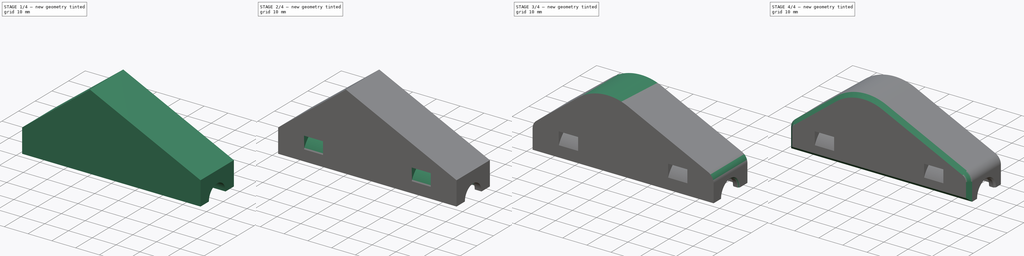
[diagram: build sequence overview — one tinted view per stage of 4, left to right]
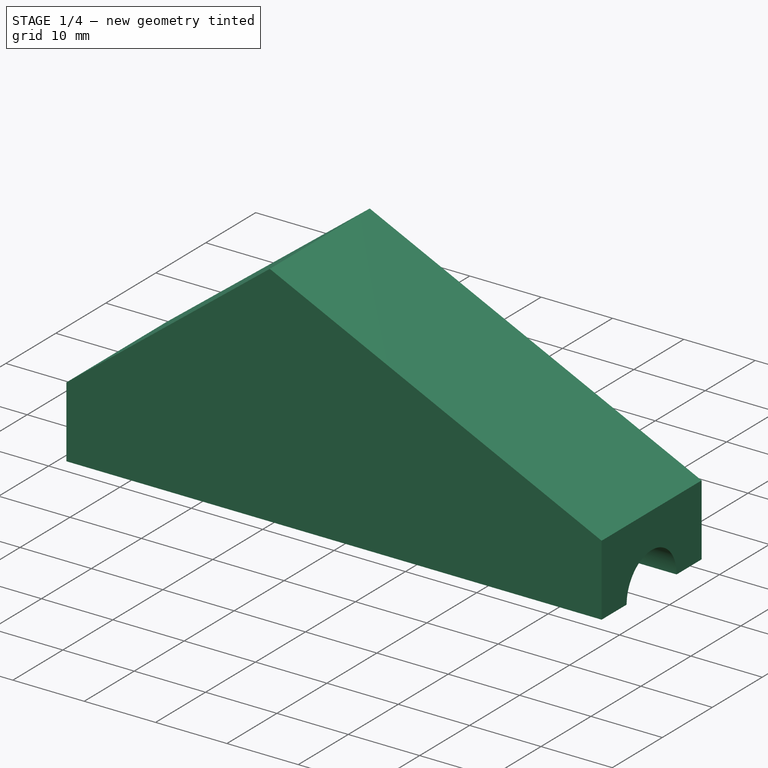
[diagram: stage 1 of 4 — iso view after this stage's code; geometry added in this stage tinted green]
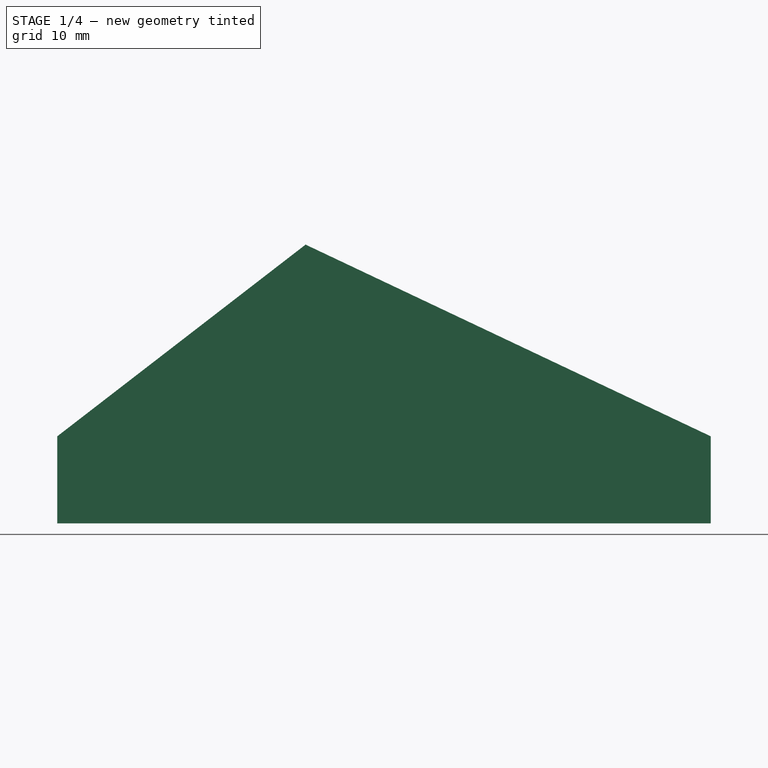
[diagram: stage 1 of 4 — front view after this stage's code; geometry added in this stage tinted green]
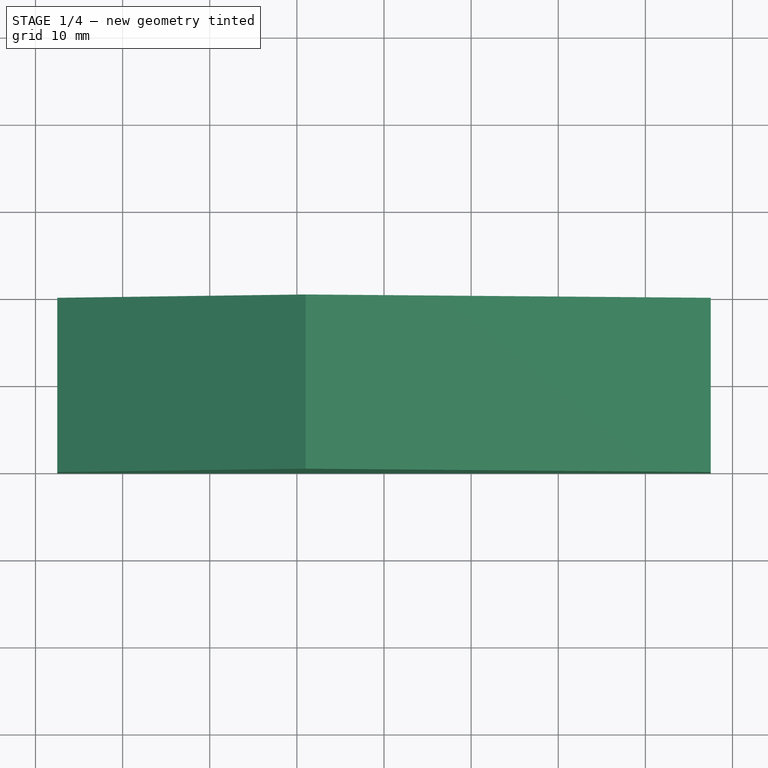
[diagram: stage 1 of 4 — top view after this stage's code; geometry added in this stage tinted green]
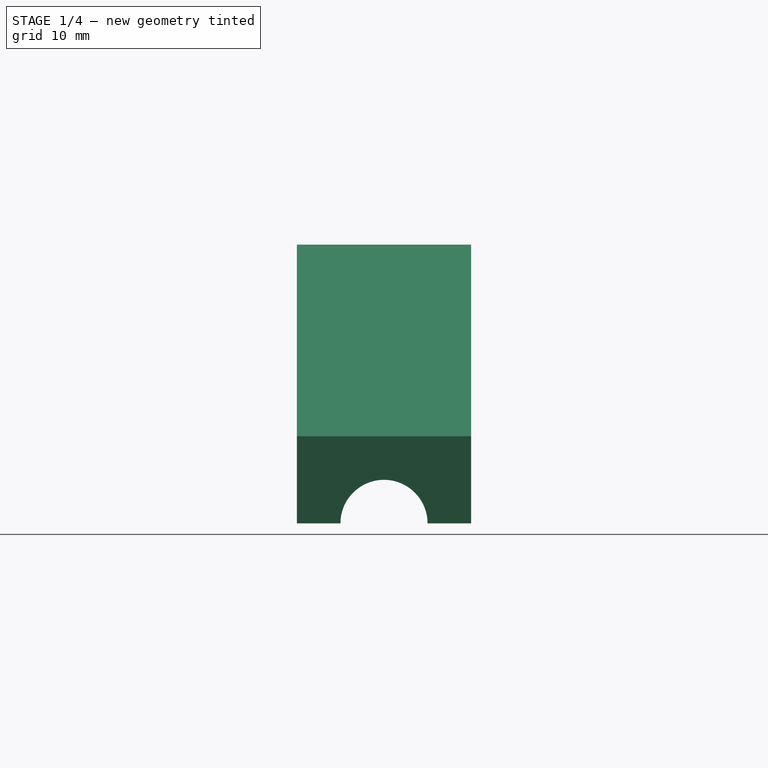
[diagram: stage 1 of 4 — right view after this stage's code; geometry added in this stage tinted green]
FCSTD DOCUMENT  (FreeCAD 0.18.4R)
Label: bearingmount
License: All rights reserved
LicenseURL: http://en.wikipedia.org/wiki/All_rights_reserved
objects: Sketcher::SketchObject×4, PartDesign::Chamfer×3, PartDesign::Pocket×2, PartDesign::Fillet×2, PartDesign::Pad×1, PartDesign::Groove×1, PartDesign::Body×1
note: 18 computed .brp shape members not serialized (recipe doc carries the construction recipe); baked Part::Feature solids carry a one-line shape summary decoded from their .brp

FEATURE [Sketcher::SketchObject] Sketch
  MapMode = 5
  Placement = pos=(0,0,0) rot=(1,0,0;1.5708rad)
  Support = -> [XZ_Plane]
  sketch-geometry (5):
    g0: LineSegment StartX=-37.5 StartY=0 StartZ=0 EndX=37.5 EndY=-1e-16 EndZ=0
    g1: LineSegment StartX=37.5 StartY=-1e-16 StartZ=0 EndX=37.5 EndY=10 EndZ=0
    g2: LineSegment StartX=37.5 StartY=10 StartZ=0 EndX=-9 EndY=32 EndZ=0
    g3: LineSegment StartX=-9 StartY=32 StartZ=0 EndX=-37.5 EndY=10 EndZ=0
    g4: LineSegment StartX=-37.5 StartY=10 StartZ=0 EndX=-37.5 EndY=0 EndZ=0
  constraints (14):
    c: Coincident(g0,g1)
    c: Vertical(g1)
    c: Coincident(g1,g2)
    c: Coincident(g2,g3)
    c: Coincident(g3,g4)
    c: Vertical(g4)
    c: Coincident(g4,g0)
    c: DistanceY(g4,g4) = 10
    c: DistanceY(g1,g1) = 10
    c: DistanceX(g0,g0) = 75
    c: DistanceX(g2,g-1) = 9
    c: Symmetric(g0,g0,g-2)
    c: DistanceY(g3,g2) = 22
    c: PointOnObject(g0,g-1)
FEATURE [PartDesign::Pad] Pad
  Length = 20
  Length2 = 100
  Midplane = true
  Placement = pos=(0,0,0) rot=(1,0,0;1.5708rad)
  Profile = -> Sketch
  Refine = true
  Type = 0
FEATURE [Sketcher::SketchObject] Sketch001
  MapMode = 5
  Placement = pos=(37.5,0,0) rot=(0.707107,0,0.707107;3.14159rad)
  Support = -> [Pad]
  sketch-geometry (1):
    g0: Circle CenterX=0 CenterY=0 CenterZ=0 NormalX=0 NormalY=0 NormalZ=1 AngleXU=0 Radius=5
  constraints (2):
    c: Coincident(g0,g-1)
    c: Radius(g0) = 5
FEATURE [PartDesign::Pocket] Pocket
  BaseFeature = -> Pad
  Length = 5
  Length2 = 100
  Placement = pos=(0,0,0) rot=(1,0,0;1.5708rad)
  Profile = -> Sketch001
  Refine = true
  Type = 1
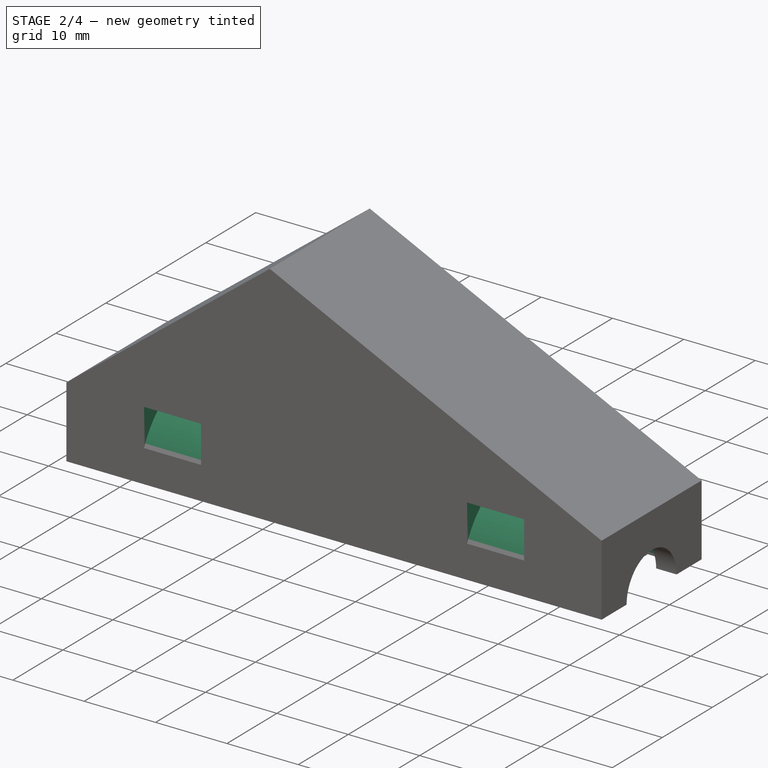
[diagram: stage 2 of 4 — iso view after this stage's code; geometry added in this stage tinted green]
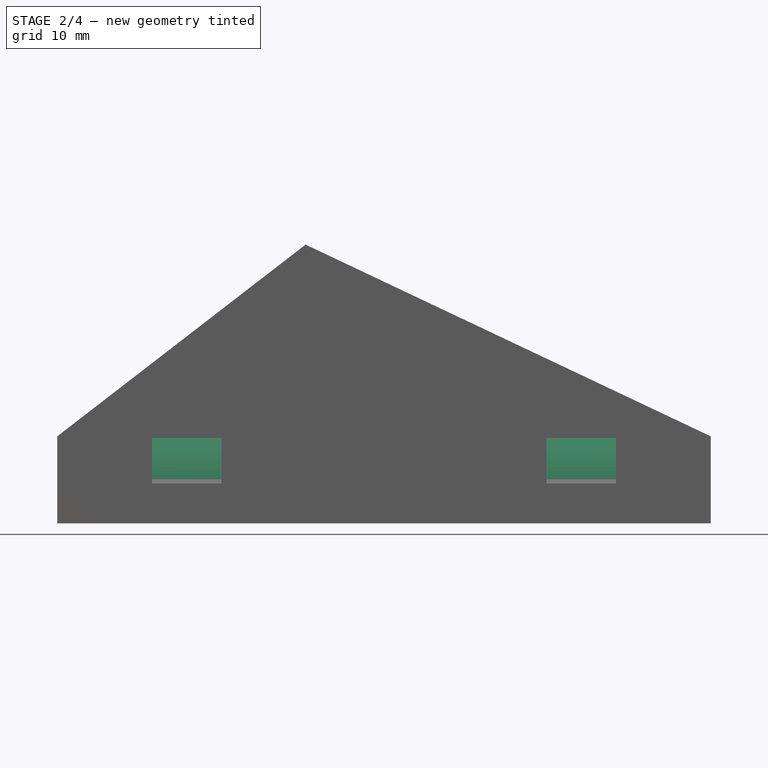
[diagram: stage 2 of 4 — front view after this stage's code; geometry added in this stage tinted green]
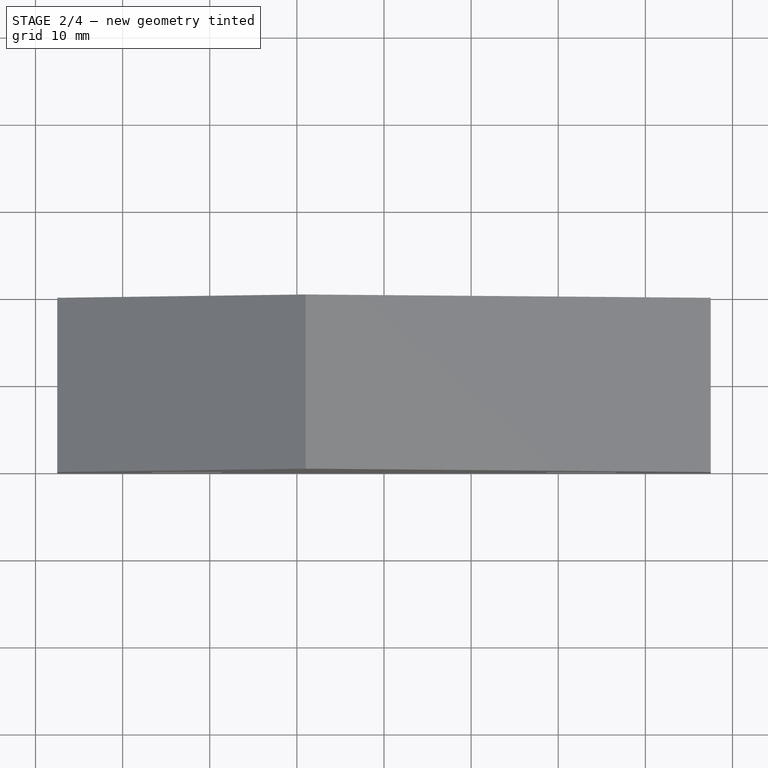
[diagram: stage 2 of 4 — top view after this stage's code; geometry added in this stage tinted green]
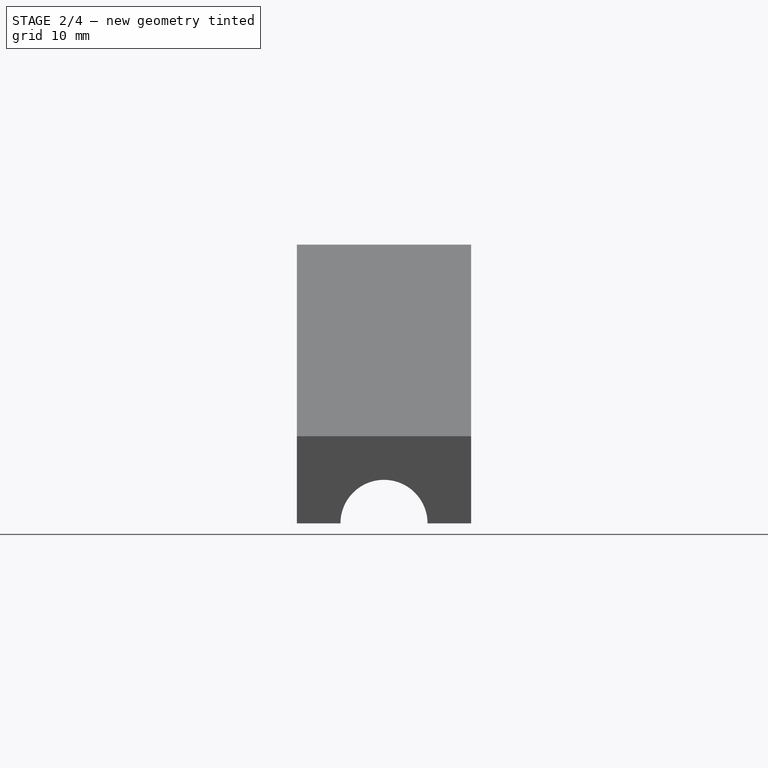
[diagram: stage 2 of 4 — right view after this stage's code; geometry added in this stage tinted green]
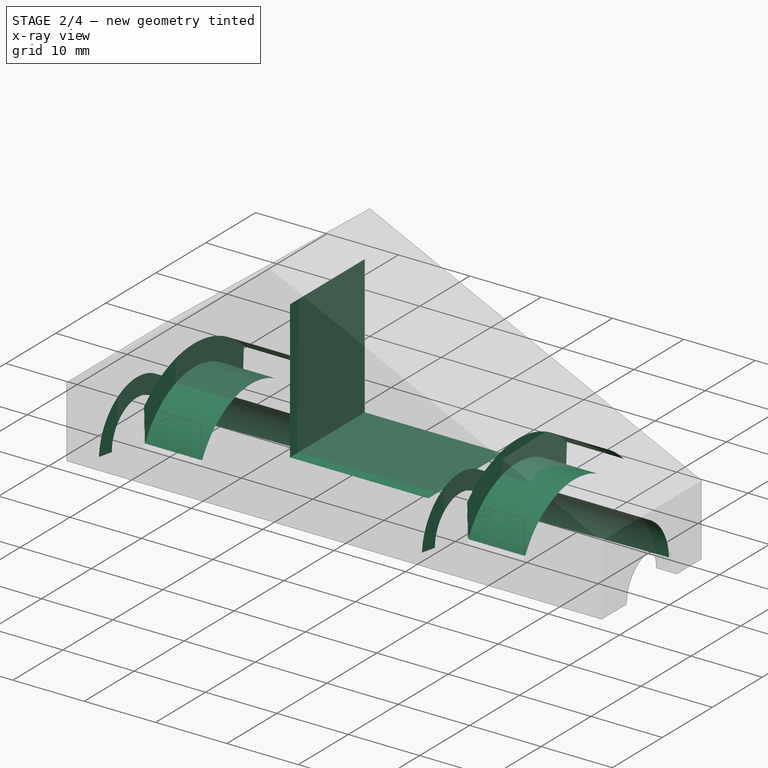
[diagram: stage 2 of 4 — x-ray composite at the iso view; earlier geometry ghosted, this stage's added geometry solid]
FEATURE [Sketcher::SketchObject] Sketch002
  MapMode = 5
  Placement = pos=(0,10,-1.11e-14) rot=(-1,0,0;1.5708rad)
  Support = -> [Pocket]
  sketch-geometry (6):
    g0: LineSegment StartX=-9.7 StartY=-25.4 StartZ=0 EndX=-9.7 EndY=-6 EndZ=0
    g1: LineSegment StartX=-9.7 StartY=-6 StartZ=0 EndX=9.7 EndY=-6 EndZ=0
    g2: LineSegment StartX=9.7 StartY=-6 StartZ=0 EndX=9.7 EndY=-7.8 EndZ=0
    g3: LineSegment StartX=9.7 StartY=-7.8 StartZ=0 EndX=-7.9 EndY=-7.8 EndZ=0
    g4: LineSegment StartX=-7.9 StartY=-7.8 StartZ=0 EndX=-7.9 EndY=-25.4 EndZ=0
    g5: LineSegment StartX=-7.9 StartY=-25.4 StartZ=0 EndX=-9.7 EndY=-25.4 EndZ=0
  constraints (17):
    c: Vertical(g0)
    c: Coincident(g0,g1)
    c: Coincident(g1,g2)
    c: Coincident(g2,g3)
    c: Horizontal(g3)
    c: Coincident(g3,g4)
    c: Vertical(g4)
    c: Coincident(g4,g5)
    c: Coincident(g5,g0)
    c: Vertical(g2)
    c: Horizontal(g5)
    c: DistanceY(g0,g0) = 19.4
    c: Equal(g0,g1)
    c: Equal(g5,g2)
    c: DistanceY(g2,g2) = 1.8
    c: Symmetric(g0,g1,g-2)
    c: DistanceY(g1,g-1) = 6
FEATURE [PartDesign::Pocket] Pocket001
  BaseFeature = -> Pocket
  Length = 15
  Length2 = 100
  Placement = pos=(0,0,0) rot=(1,0,0;1.5708rad)
  Profile = -> Sketch002
  Refine = true
  Type = 0
FEATURE [Sketcher::SketchObject] Sketch003
  MapMode = 5
  Placement = pos=(0,0,0) rot=(1,0,0;1.5708rad)
  Support = -> [XZ_Plane]
  sketch-geometry (17):
    g0: LineSegment StartX=-34.6369 StartY=0 StartZ=0 EndX=-10.6369 EndY=0 EndZ=0
    g1: LineSegment StartX=-10.6369 StartY=0 StartZ=0 EndX=-10.6369 EndY=7.6 EndZ=0
    g2: LineSegment StartX=-10.6369 StartY=7.6 StartZ=0 EndX=-34.6369 EndY=7.6 EndZ=0
    g3: LineSegment StartX=-34.6369 StartY=7.6 StartZ=0 EndX=-34.6369 EndY=0 EndZ=0
    g4: LineSegment StartX=10.6369 StartY=0 StartZ=0 EndX=34.6369 EndY=0 EndZ=0
    g5: LineSegment StartX=34.6369 StartY=0 StartZ=0 EndX=34.6369 EndY=7.6 EndZ=0
    g6: LineSegment StartX=34.6369 StartY=7.6 StartZ=0 EndX=10.6369 EndY=7.6 EndZ=0
    g7: LineSegment StartX=10.6369 StartY=7.6 StartZ=0 EndX=10.6369 EndY=0 EndZ=0
    g8: LineSegment StartX=-26.6369 StartY=14 StartZ=0 EndX=-18.6369 EndY=14 EndZ=0
    g9: LineSegment StartX=-18.6369 StartY=14 StartZ=0 EndX=-18.6369 EndY=11 EndZ=0
    g10: LineSegment StartX=-18.6369 StartY=11 StartZ=0 EndX=-26.6369 EndY=11 EndZ=0
    g11: LineSegment StartX=-26.6369 StartY=11 StartZ=0 EndX=-26.6369 EndY=14 EndZ=0
    g12: LineSegment StartX=18.6369 StartY=14 StartZ=0 EndX=26.6369 EndY=14 EndZ=0
    g13: LineSegment StartX=26.6369 StartY=14 StartZ=0 EndX=26.6369 EndY=11 EndZ=0
    g14: LineSegment StartX=26.6369 StartY=11 StartZ=0 EndX=18.6369 EndY=11 EndZ=0
    g15: LineSegment StartX=18.6369 StartY=11 StartZ=0 EndX=18.6369 EndY=14 EndZ=0
    g16: LineSegment [constr] StartX=-22.6369 StartY=0 StartZ=0 EndX=-22.6369 EndY=14 EndZ=0
  constraints (47):
    c: Coincident(g0,g1)
    c: Coincident(g1,g2)
    c: Coincident(g2,g3)
    c: Coincident(g3,g0)
    c: Horizontal(g0)
    c: Horizontal(g2)
    c: Vertical(g1)
    c: Vertical(g3)
    c: PointOnObject(g0,g-1)
    c: Coincident(g4,g5)
    c: Coincident(g5,g6)
    c: Coincident(g6,g7)
    c: Coincident(g7,g4)
    c: Horizontal(g4)
    c: Horizontal(g6)
    c: Vertical(g5)
    c: Vertical(g7)
    c: Coincident(g8,g9)
    c: Coincident(g9,g10)
    c: Coincident(g10,g11)
    c: Coincident(g11,g8)
    c: Horizontal(g8)
    c: Vertical(g9)
    c: Vertical(g11)
    c: Coincident(g12,g13)
    c: Coincident(g13,g14)
    c: Coincident(g14,g15)
    c: Coincident(g15,g12)
    c: Horizontal(g12)
    c: Horizontal(g14)
    c: Vertical(g13)
    c: Vertical(g15)
    c: DistanceY(g3,g3) = 7.6
    c: Equal(g7,g1)
    c: Equal(g2,g6)
    c: DistanceX(g2,g2) = 24
    c: Symmetric(g1,g6,g-2)
    c: DistanceY(g-1,g9) = 11
    c: Equal(g9,g15)
    c: Equal(g12,g8)
    c: Symmetric(g14,g9,g-2)
    c: PointOnObject(g16,g8)
    c: PointOnObject(g16,g0)
    c: Symmetric(g2,g1,g16)
    c: Symmetric(g10,g9,g16)
    c: DistanceY(g9,g9) = 3
    c: DistanceX(g8,g8) = 8
FEATURE [PartDesign::Groove] Groove
  Angle = 360
  Axis = (1,0,0)
  Base = (0,0,0)
  BaseFeature = -> Pocket001
  Placement = pos=(0,0,0) rot=(1,0,0;1.5708rad)
  Profile = -> Sketch003
  ReferenceAxis = -> Sketch003 [H_Axis]
  Refine = true
  Reversed = true
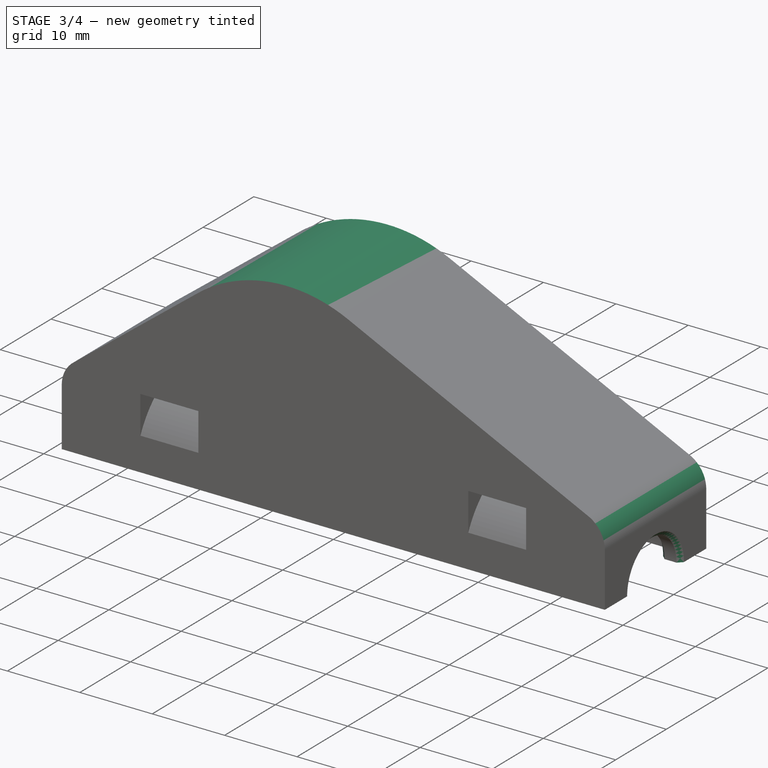
[diagram: stage 3 of 4 — iso view after this stage's code; geometry added in this stage tinted green]
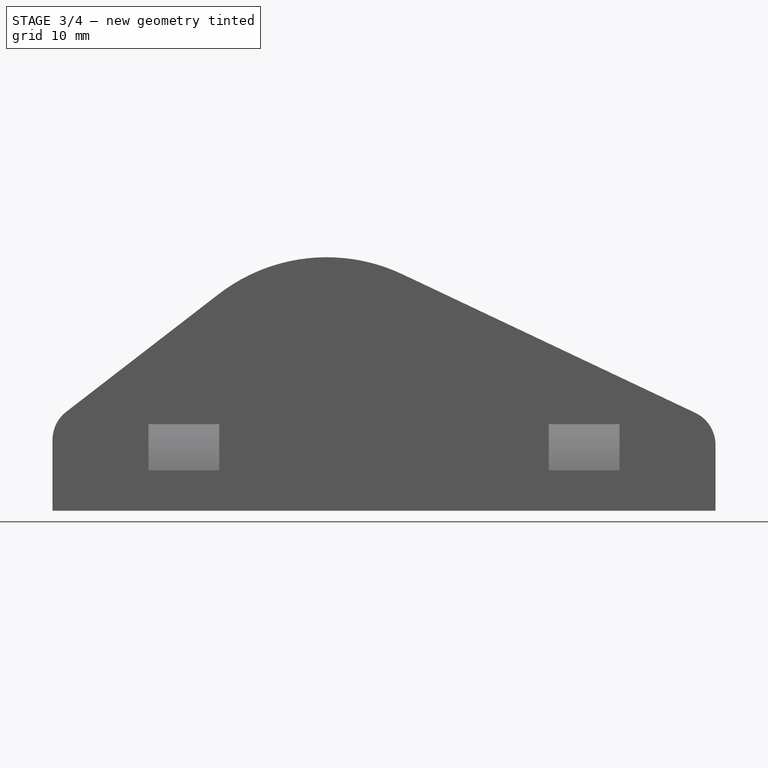
[diagram: stage 3 of 4 — front view after this stage's code; geometry added in this stage tinted green]
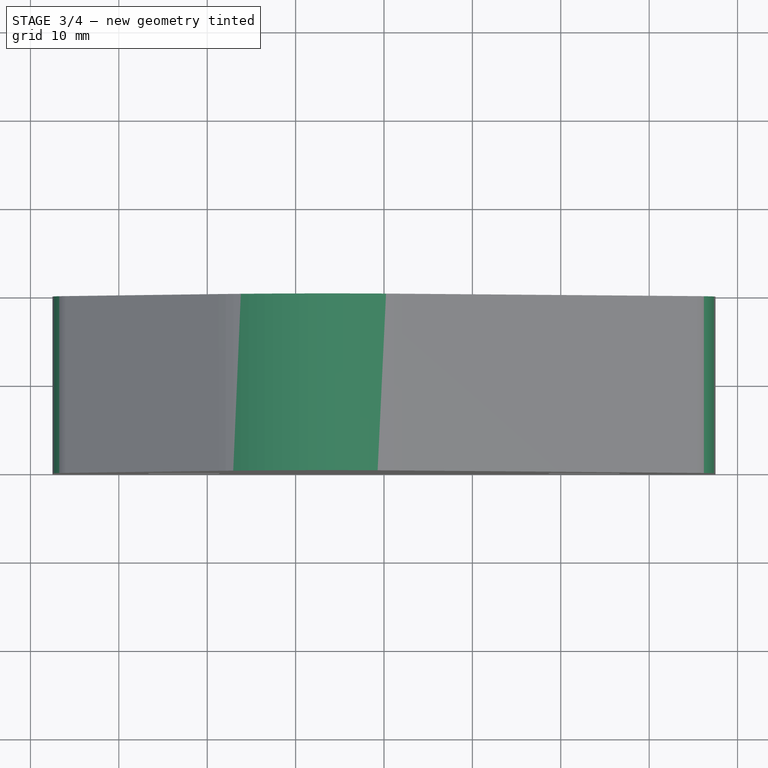
[diagram: stage 3 of 4 — top view after this stage's code; geometry added in this stage tinted green]
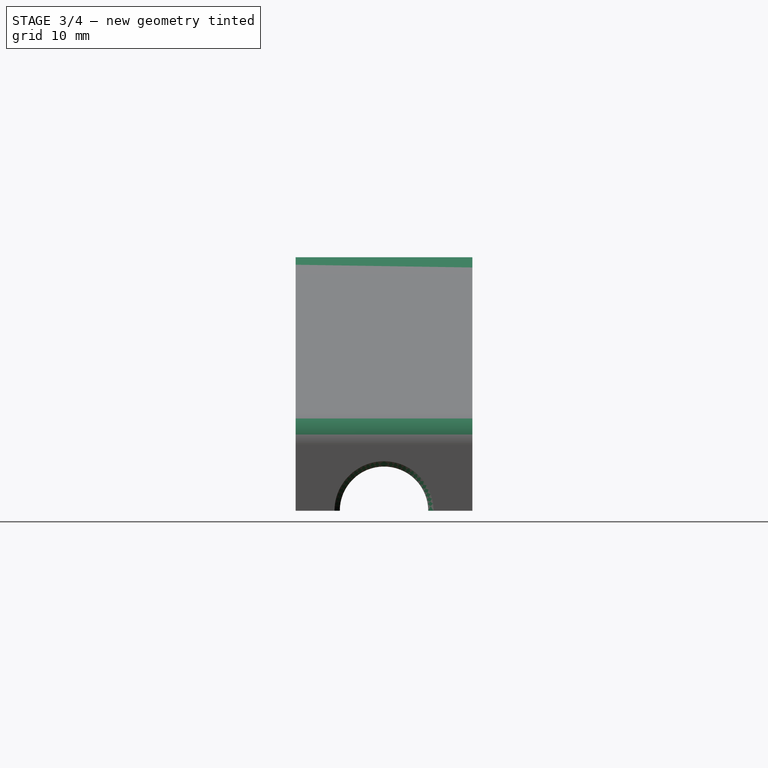
[diagram: stage 3 of 4 — right view after this stage's code; geometry added in this stage tinted green]
FEATURE [PartDesign::Chamfer] Chamfer
  Base = -> Groove [Edge35,Edge36,Edge43,Edge45,Edge52,Edge55]
  BaseFeature = -> Groove
  Placement = pos=(0,0,0) rot=(1,0,0;1.5708rad)
  Size = 0.6
FEATURE [PartDesign::Fillet] Fillet
  Base = -> Chamfer [Edge95]
  BaseFeature = -> Chamfer
  Placement = pos=(0,0,0) rot=(1,0,0;1.5708rad)
  Radius = 20
FEATURE [PartDesign::Fillet] Fillet001
  Base = -> Fillet [Edge31,Edge22]
  BaseFeature = -> Fillet
  Placement = pos=(0,0,0) rot=(1,0,0;1.5708rad)
  Radius = 4
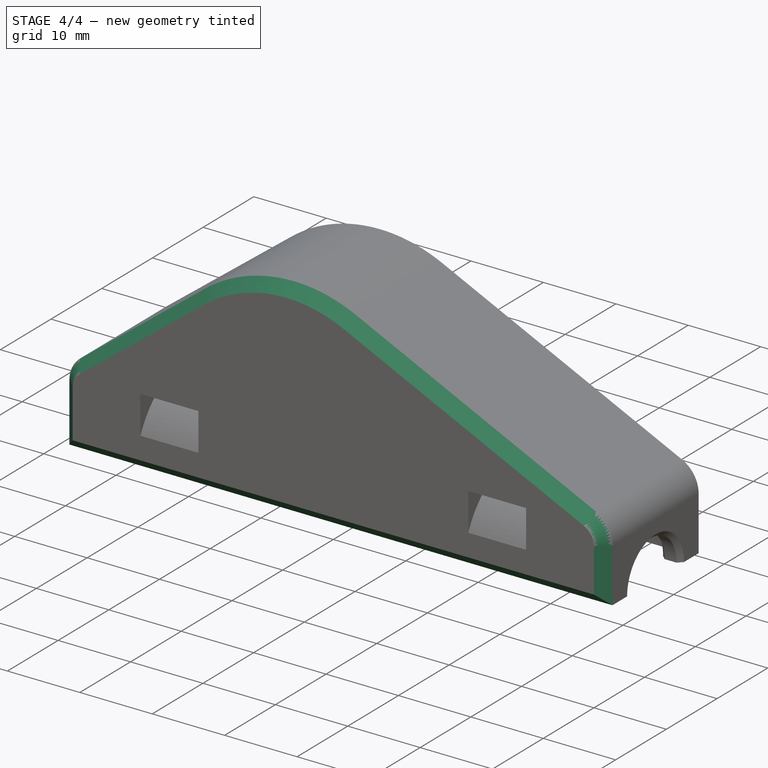
[diagram: stage 4 of 4 — iso view after this stage's code; geometry added in this stage tinted green]
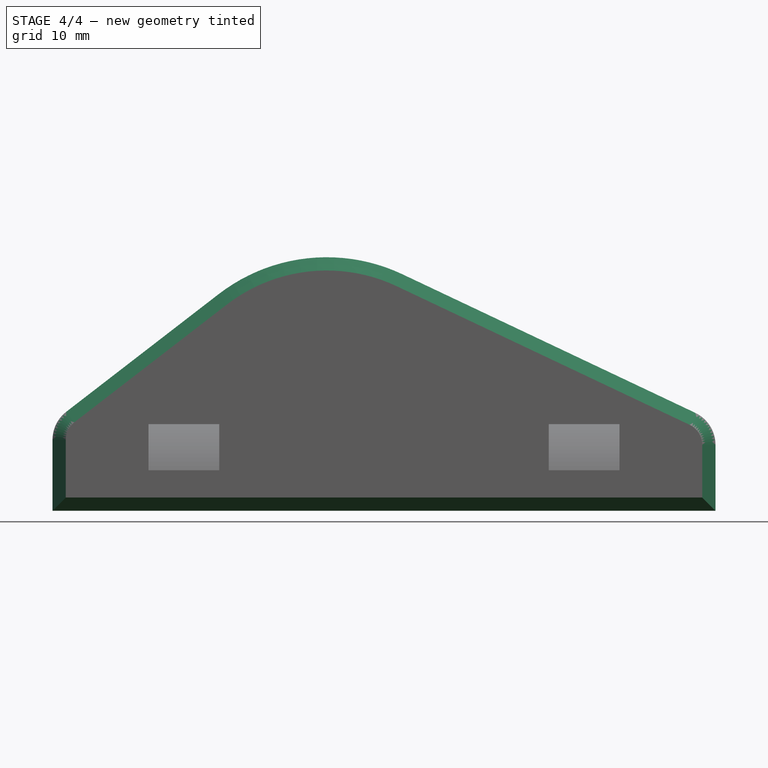
[diagram: stage 4 of 4 — front view after this stage's code; geometry added in this stage tinted green]
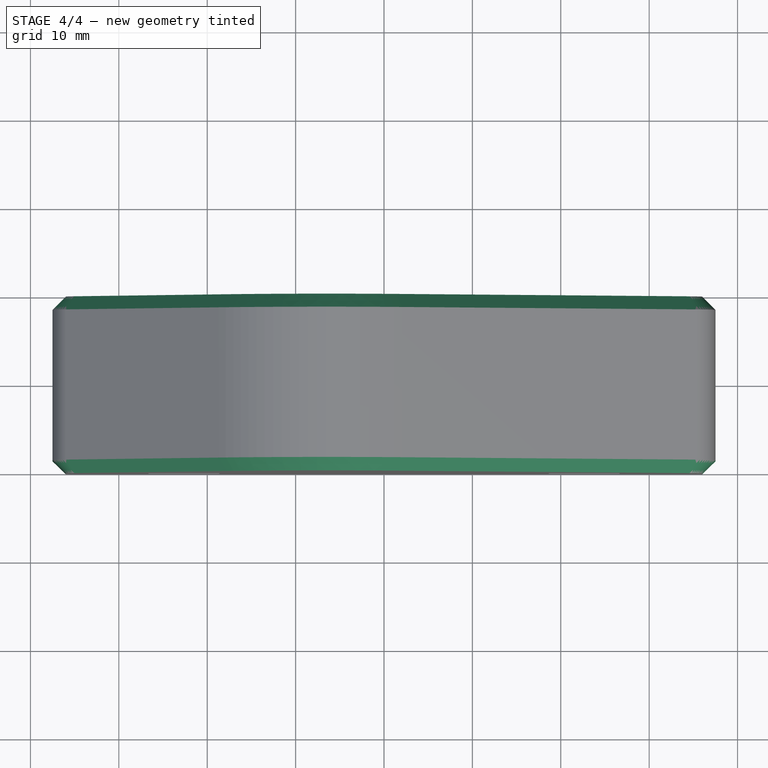
[diagram: stage 4 of 4 — top view after this stage's code; geometry added in this stage tinted green]
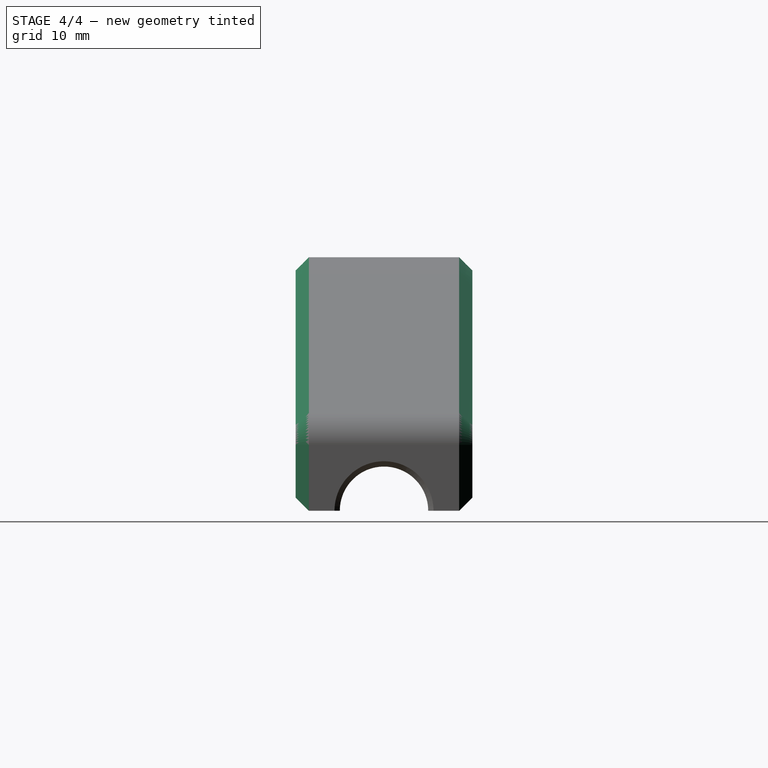
[diagram: stage 4 of 4 — right view after this stage's code; geometry added in this stage tinted green]
FEATURE [PartDesign::Chamfer] Chamfer001
  Base = -> Fillet001 [Edge5,Edge6,Edge36,Edge95]
  BaseFeature = -> Fillet001
  Placement = pos=(0,0,0) rot=(1,0,0;1.5708rad)
  Size = 1.5
FEATURE [PartDesign::Chamfer] Chamfer002
  Base = -> Chamfer001 [Edge13,Edge16,Edge14,Edge15,Edge18,Edge17]
  BaseFeature = -> Chamfer001
  Placement = pos=(0,0,0) rot=(1,0,0;1.5708rad)
  Size = 1
FEATURE [PartDesign::Body] Body
  Group = -> [Sketch,Pad,Sketch001,Pocket,Sketch002,Pocket001,Sketch003,Groove,Chamfer,Fillet,Fillet001,Chamfer001,Chamfer002]
  Origin = -> Origin
  Tip = -> Chamfer002
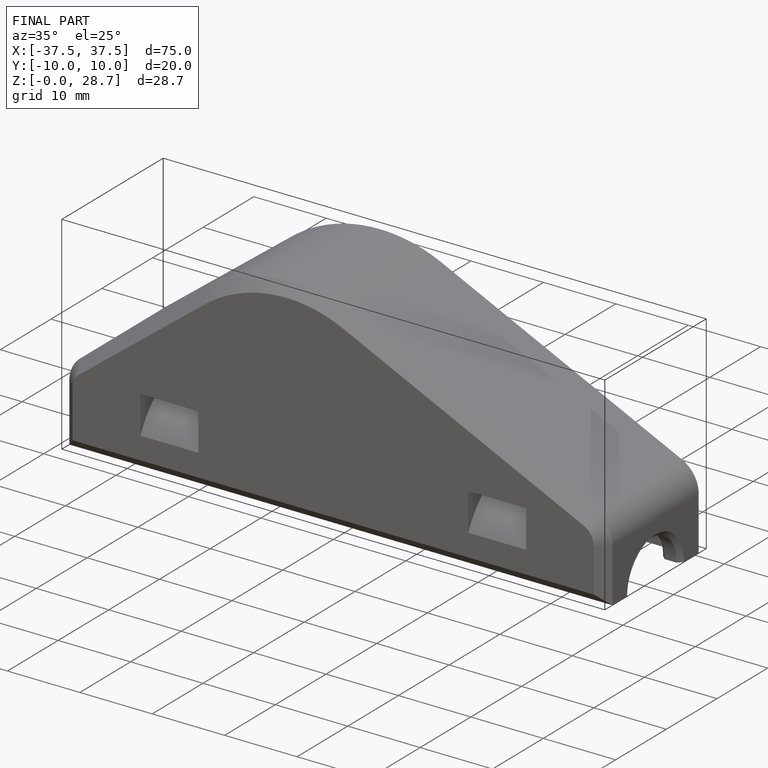
[diagram: finished part — iso view with bounding-box wireframe]
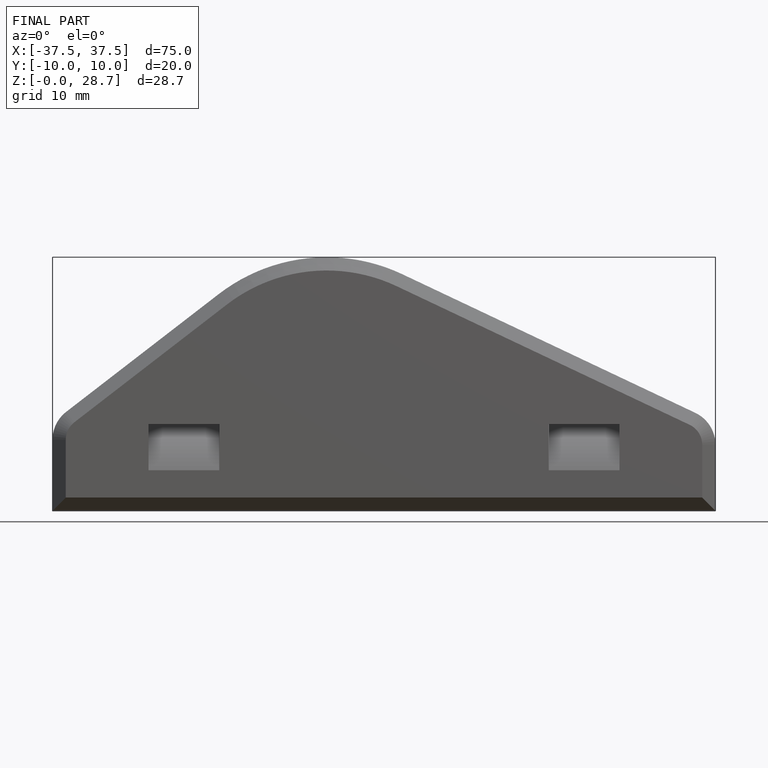
[diagram: finished part — front view with bounding-box wireframe]
